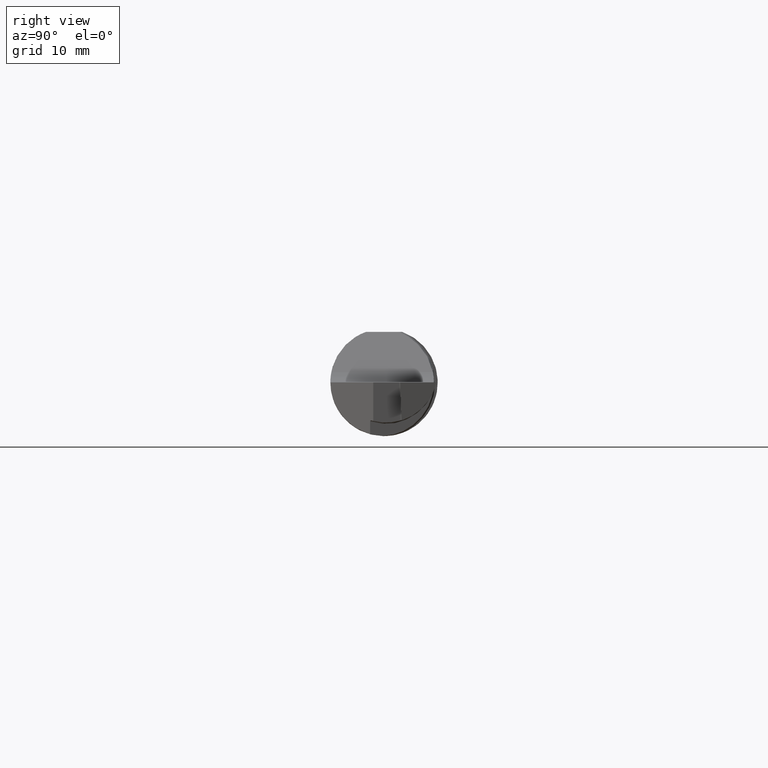
[diagram: clean part render]
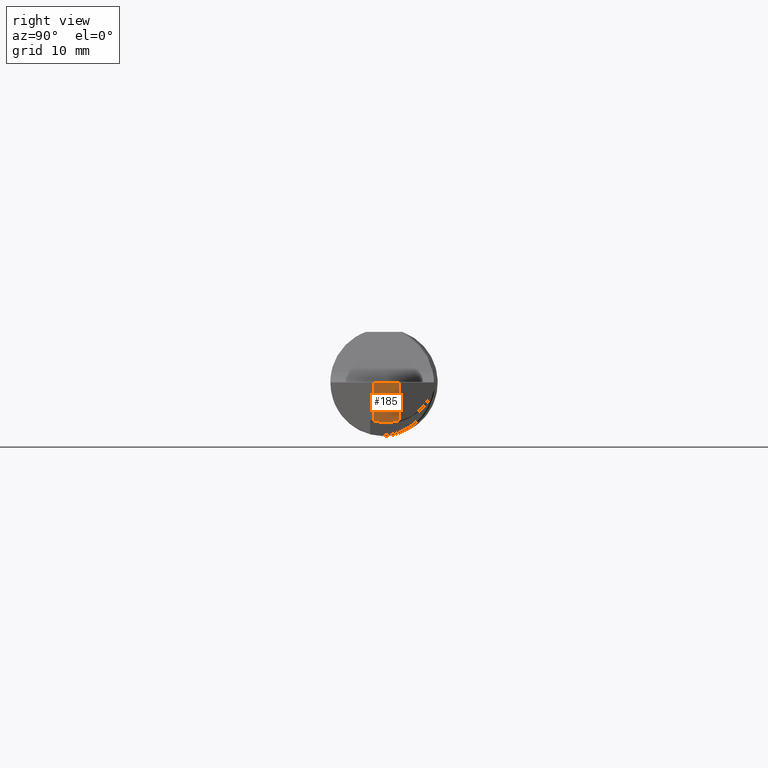
[diagram: same view with one face highlighted and labeled with its STEP entity id]
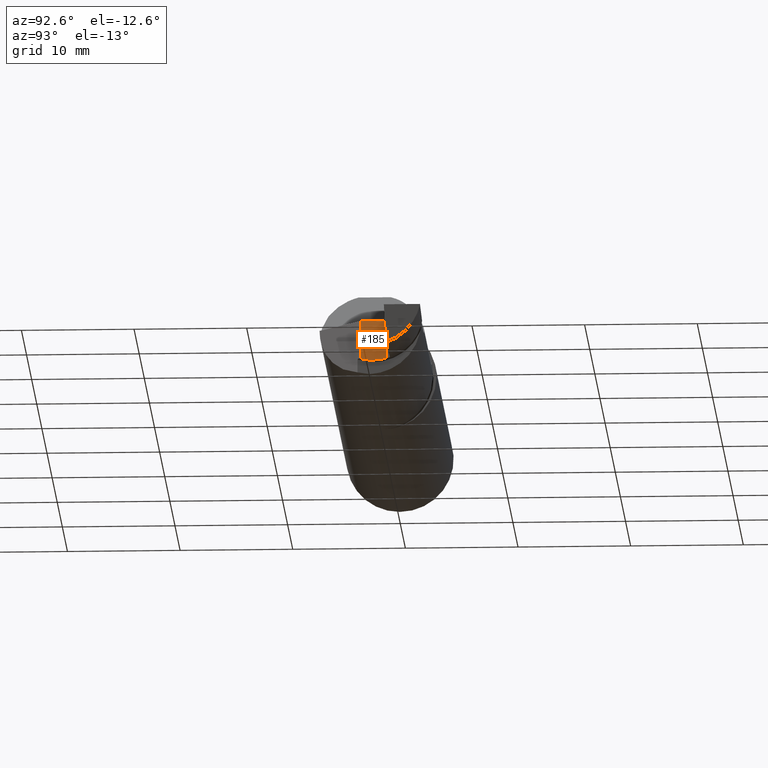
[diagram: same view with one face highlighted and labeled with its STEP entity id]
A machine part, right view. The second image highlights one B-rep face of the part: STEP entity #185.
A second angle (auxiliary view) of the same face is appended — the face is thin or edge-on in the first view.
In plain terms, the highlighted planar face has unit normal (-1, 0, -0).
Its self-contained STEP definition (entity closure, byte-faithful):
#7 = DIRECTION ( 'NONE',  ( -0.000000000000000000, -0.000000000000000000, 1.000000000000000000 ) ) ;
#25 = CARTESIAN_POINT ( 'NONE',  ( 2.234999999999999876, -0.03734999999999999432, -0.1344876965665182389 ) ) ;
#67 = PLANE ( 'NONE',  #458 ) ;
#83 = VECTOR ( 'NONE', #575, 39.37007874015748143 ) ;
#122 = DIRECTION ( 'NONE',  ( -0.000000000000000000, -0.000000000000000000, 1.000000000000000000 ) ) ;
#132 = EDGE_CURVE ( 'NONE', #338, #744, #786, .T. ) ;
#146 = CARTESIAN_POINT ( 'NONE',  ( 2.234999999999999876, 0.05283397142197883423, -6.829619984160658046E-17 ) ) ;
#156 = EDGE_CURVE ( 'NONE', #296, #852, #202, .T. ) ;
#171 = CARTESIAN_POINT ( 'NONE',  ( 2.234999999999999876, -0.03734999999999999432, -6.829619984160658046E-17 ) ) ;
#179 = VECTOR ( 'NONE', #7, 39.37007874015748143 ) ;
#185 = ADVANCED_FACE ( 'NONE', ( #803 ), #67, .F. ) ;
#191 = CARTESIAN_POINT ( 'NONE',  ( 2.234999999999999876, 0.05283397142197883423, -0.1873499999999999888 ) ) ;
#198 = EDGE_CURVE ( 'NONE', #852, #744, #582, .T. ) ;
#200 = ORIENTED_EDGE ( 'NONE', *, *, #198, .F. ) ;
#202 = LINE ( 'NONE', #384, #239 ) ;
#239 = VECTOR ( 'NONE', #122, 39.37007874015748143 ) ;
#259 = CARTESIAN_POINT ( 'NONE',  ( 2.234999999999999876, -0.2873499999999999943, 0.000000000000000000 ) ) ;
#267 = DIRECTION ( 'NONE',  ( -0.000000000000000000, 0.000000000000000000, 1.000000000000000000 ) ) ;
#296 = VERTEX_POINT ( 'NONE', #25 ) ;
#329 =( BOUNDED_CURVE ( )  B_SPLINE_CURVE ( 3, ( #717, #383, #646, #387 ),
 .UNSPECIFIED., .F., .F. ) 
 B_SPLINE_CURVE_WITH_KNOTS ( ( 4, 4 ),
 ( 1.319139245857699594, 1.840296107030880757 ),
 .UNSPECIFIED. ) 
 CURVE ( )  GEOMETRIC_REPRESENTATION_ITEM ( )  RATIONAL_B_SPLINE_CURVE ( ( 1.000000000000000000, 0.9774940754800396370, 0.9774940754800396370, 1.000000000000000000 ) ) 
 REPRESENTATION_ITEM ( '' )  );
#338 = VERTEX_POINT ( 'NONE', #475 ) ;
#346 = EDGE_LOOP ( 'NONE', ( #815, #448, #626, #200 ) ) ;
#383 = CARTESIAN_POINT ( 'NONE',  ( 2.234999999999999876, -0.007564055248285224062, -0.1421447286674906718 ) ) ;
#384 = CARTESIAN_POINT ( 'NONE',  ( 2.234999999999999876, -0.03734999999999999432, -0.1873499999999999888 ) ) ;
#387 = CARTESIAN_POINT ( 'NONE',  ( 2.234999999999999876, 0.05283397142197883423, -0.1336832350208877196 ) ) ;
#448 = ORIENTED_EDGE ( 'NONE', *, *, #641, .T. ) ;
#454 = CARTESIAN_POINT ( 'NONE',  ( 2.234999999999999876, 0.05283397142197883423, -0.1873499999999999888 ) ) ;
#458 = AXIS2_PLACEMENT_3D ( 'NONE', #454, #459, #267 ) ;
#459 = DIRECTION ( 'NONE',  ( -1.000000000000000000, 0.000000000000000000, -0.000000000000000000 ) ) ;
#475 = CARTESIAN_POINT ( 'NONE',  ( 2.234999999999999876, 0.05283397142197883423, -0.1336832350208877196 ) ) ;
#575 = DIRECTION ( 'NONE',  ( 0.000000000000000000, 1.000000000000000000, 0.000000000000000000 ) ) ;
#582 = LINE ( 'NONE', #259, #83 ) ;
#626 = ORIENTED_EDGE ( 'NONE', *, *, #132, .T. ) ;
#641 = EDGE_CURVE ( 'NONE', #296, #338, #329, .T. ) ;
#646 = CARTESIAN_POINT ( 'NONE',  ( 2.234999999999999876, 0.02318940358220781400, -0.1418704008170514896 ) ) ;
#717 = CARTESIAN_POINT ( 'NONE',  ( 2.234999999999999876, -0.03734999999999999432, -0.1344876965665182389 ) ) ;
#744 = VERTEX_POINT ( 'NONE', #146 ) ;
#786 = LINE ( 'NONE', #191, #179 ) ;
#803 = FACE_OUTER_BOUND ( 'NONE', #346, .T. ) ;
#815 = ORIENTED_EDGE ( 'NONE', *, *, #156, .F. ) ;
#852 = VERTEX_POINT ( 'NONE', #171 ) ;